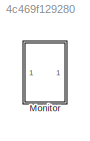
MODEL slx_4c469f129280
KIND model
CONFIG InitFcn = Ts = 0.1;\nROBOT_DOF=23;
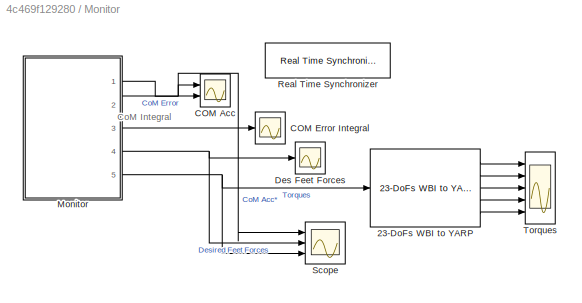
BLOCK [SubSystem] Monitor
  Ports = []
  RequestExecContextInheritance = off
BLOCK [Reference] Monitor/23-DoFs WBI to YARP  REF=WBCLibrary/Utilities/23-DoFs WBI to YARP
  Ports = [1, 5]
  SourceBlock = WBCLibrary/Utilities/23-DoFs WBI to YARP
BLOCK [Scope] Monitor/COM Acc
  DataFormat = StructureWithTime
  Floating = off
  LimitDataPoints = off
  NumInputPorts = 2
  Ports = [2]
  SampleTime = 0
  ShowLegends = on
  YMax = 0.2~0.04
  YMin = -0.4~-0.02
BLOCK [Scope] Monitor/COM Error Integral
  DataFormat = StructureWithTime
  Floating = off
  NumInputPorts = 1
  Ports = [1]
  SampleTime = 0
  SaveName = ScopeData4
  ShowLegends = off
  YMax = 0.1
  YMin = -0.7
BLOCK [Scope] Monitor/Des Feet Forces
  DataFormat = StructureWithTime
  Floating = off
  NumInputPorts = 1
  Ports = [1]
  SampleTime = 0
  SaveName = ScopeData2
  ShowLegends = off
  TimeRange = 10
  YMax = 120
  YMin = -10
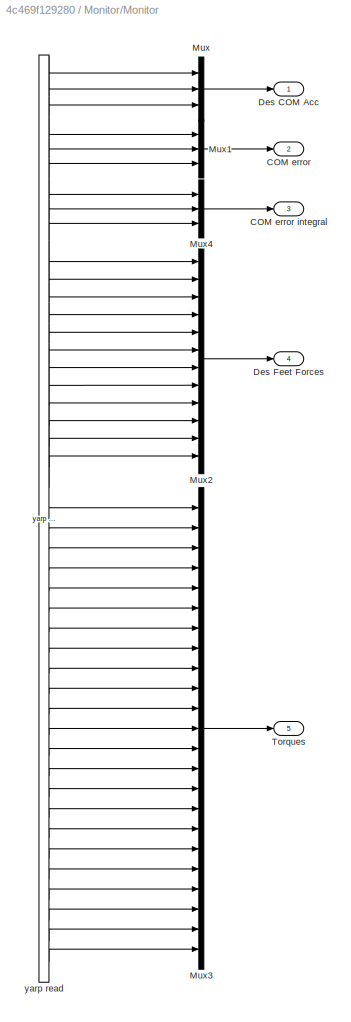
BLOCK [SubSystem] Monitor/Monitor
  Ports = [0, 5]
  RequestExecContextInheritance = off
BLOCK [Outport] Monitor/Monitor/COM error
  IconDisplay = Port number
  Port = 2
BLOCK [Outport] Monitor/Monitor/COM error integral
  IconDisplay = Port number
  Port = 3
BLOCK [Outport] Monitor/Monitor/Des COM Acc
  IconDisplay = Port number
BLOCK [Outport] Monitor/Monitor/Des Feet Forces
  IconDisplay = Port number
  Port = 4
BLOCK [Mux] Monitor/Monitor/Mux
  DisplayOption = bar
  Inputs = 3
  Ports = [3, 1]
BLOCK [Mux] Monitor/Monitor/Mux1
  DisplayOption = bar
  Inputs = 3
  Ports = [3, 1]
BLOCK [Mux] Monitor/Monitor/Mux2
  DisplayOption = bar
  Inputs = 12
  Ports = [12, 1]
BLOCK [Mux] Monitor/Monitor/Mux3
  DisplayOption = bar
  Inputs = 23
  Ports = [23, 1]
BLOCK [Mux] Monitor/Monitor/Mux4
  DisplayOption = bar
  Inputs = 3
  Ports = [3, 1]
BLOCK [Outport] Monitor/Monitor/Torques
  IconDisplay = Port number
  Port = 5
BLOCK [Reference] Monitor/Monitor/yarp read  REF=WBCLibrary/Utilities/yarp read
  Ports = [0, 44]
  SourceBlock = WBCLibrary/Utilities/yarp read
  SourceType = yarp read
  autoconnect = on
  blocking = off
  from = ['/' moduleName '/monitor:o']
  num = 44
  timestamp = off
  to = '...'
BLOCK [Reference] Monitor/Real Time Synchronizer  REF=WBCLibrary/Utilities/Real Time Synchronizer
  Ports = []
  Priority = -10
  SourceBlock = WBCLibrary/Utilities/Real Time Synchronizer
  threadPeriod = Ts
BLOCK [Scope] Monitor/Scope
  Floating = off
  LimitDataPoints = off
  NumInputPorts = 3
  Ports = [3]
  SaveName = ScopeData1
  ShowLegends = on
  YMax = 0.3~160~10
  YMin = -0.4~-20~-20
BLOCK [Scope] Monitor/Torques
  DataFormat = StructureWithTime
  Floating = off
  LimitDataPoints = off
  NumInputPorts = 5
  Ports = [5]
  SampleTime = 0
  SaveName = ScopeData3
  ShowLegends = off
  YMax = 1~5~5~5~5
  YMin = -1~-5~-5~-5~-5
ANNOTATION Monitor: CoM Integral
LINE Monitor/23-DoFs WBI to YARP:1 -> Monitor/Torques:1
LINE Monitor/23-DoFs WBI to YARP:2 -> Monitor/Torques:2
LINE Monitor/23-DoFs WBI to YARP:3 -> Monitor/Torques:3
LINE Monitor/23-DoFs WBI to YARP:4 -> Monitor/Torques:4
LINE Monitor/23-DoFs WBI to YARP:5 -> Monitor/Torques:5
LINE Monitor/Monitor/Mux1:1 -> Monitor/Monitor/COM error:1
LINE Monitor/Monitor/Mux2:1 -> Monitor/Monitor/Des Feet Forces:1
LINE Monitor/Monitor/Mux3:1 -> Monitor/Monitor/Torques:1
LINE Monitor/Monitor/Mux4:1 -> Monitor/Monitor/COM error integral:1
LINE Monitor/Monitor/Mux:1 -> Monitor/Monitor/Des COM Acc:1
LINE Monitor/Monitor/yarp read:1 -> Monitor/Monitor/Mux:1
LINE Monitor/Monitor/yarp read:10 -> Monitor/Monitor/Mux2:1
LINE Monitor/Monitor/yarp read:11 -> Monitor/Monitor/Mux2:2
LINE Monitor/Monitor/yarp read:12 -> Monitor/Monitor/Mux2:3
LINE Monitor/Monitor/yarp read:13 -> Monitor/Monitor/Mux2:4
LINE Monitor/Monitor/yarp read:14 -> Monitor/Monitor/Mux2:5
LINE Monitor/Monitor/yarp read:15 -> Monitor/Monitor/Mux2:6
LINE Monitor/Monitor/yarp read:16 -> Monitor/Monitor/Mux2:7
LINE Monitor/Monitor/yarp read:17 -> Monitor/Monitor/Mux2:8
LINE Monitor/Monitor/yarp read:18 -> Monitor/Monitor/Mux2:9
LINE Monitor/Monitor/yarp read:19 -> Monitor/Monitor/Mux2:10
LINE Monitor/Monitor/yarp read:2 -> Monitor/Monitor/Mux:2
LINE Monitor/Monitor/yarp read:20 -> Monitor/Monitor/Mux2:11
LINE Monitor/Monitor/yarp read:21 -> Monitor/Monitor/Mux2:12
LINE Monitor/Monitor/yarp read:22 -> Monitor/Monitor/Mux3:1
LINE Monitor/Monitor/yarp read:23 -> Monitor/Monitor/Mux3:2
LINE Monitor/Monitor/yarp read:24 -> Monitor/Monitor/Mux3:3
LINE Monitor/Monitor/yarp read:25 -> Monitor/Monitor/Mux3:4
LINE Monitor/Monitor/yarp read:26 -> Monitor/Monitor/Mux3:5
LINE Monitor/Monitor/yarp read:27 -> Monitor/Monitor/Mux3:6
LINE Monitor/Monitor/yarp read:28 -> Monitor/Monitor/Mux3:7
LINE Monitor/Monitor/yarp read:29 -> Monitor/Monitor/Mux3:8
LINE Monitor/Monitor/yarp read:3 -> Monitor/Monitor/Mux:3
LINE Monitor/Monitor/yarp read:30 -> Monitor/Monitor/Mux3:9
LINE Monitor/Monitor/yarp read:31 -> Monitor/Monitor/Mux3:10
LINE Monitor/Monitor/yarp read:32 -> Monitor/Monitor/Mux3:11
LINE Monitor/Monitor/yarp read:33 -> Monitor/Monitor/Mux3:12
LINE Monitor/Monitor/yarp read:34 -> Monitor/Monitor/Mux3:13
LINE Monitor/Monitor/yarp read:35 -> Monitor/Monitor/Mux3:14
LINE Monitor/Monitor/yarp read:36 -> Monitor/Monitor/Mux3:15
LINE Monitor/Monitor/yarp read:37 -> Monitor/Monitor/Mux3:16
LINE Monitor/Monitor/yarp read:38 -> Monitor/Monitor/Mux3:17
LINE Monitor/Monitor/yarp read:39 -> Monitor/Monitor/Mux3:18
LINE Monitor/Monitor/yarp read:4 -> Monitor/Monitor/Mux1:1
LINE Monitor/Monitor/yarp read:40 -> Monitor/Monitor/Mux3:19
LINE Monitor/Monitor/yarp read:41 -> Monitor/Monitor/Mux3:20
LINE Monitor/Monitor/yarp read:42 -> Monitor/Monitor/Mux3:21
LINE Monitor/Monitor/yarp read:43 -> Monitor/Monitor/Mux3:22
LINE Monitor/Monitor/yarp read:44 -> Monitor/Monitor/Mux3:23
LINE Monitor/Monitor/yarp read:5 -> Monitor/Monitor/Mux1:2
LINE Monitor/Monitor/yarp read:6 -> Monitor/Monitor/Mux1:3
LINE Monitor/Monitor/yarp read:7 -> Monitor/Monitor/Mux4:1
LINE Monitor/Monitor/yarp read:8 -> Monitor/Monitor/Mux4:2
LINE Monitor/Monitor/yarp read:9 -> Monitor/Monitor/Mux4:3
NET Monitor/Monitor:1 -> Monitor/COM Acc:1, Monitor/Scope:1
LINE Monitor/Monitor:2 -> Monitor/COM Acc:2
LINE Monitor/Monitor:3 -> Monitor/COM Error Integral:1
NET Monitor/Monitor:4 -> Monitor/Des Feet Forces:1, Monitor/Scope:2
NET Monitor/Monitor:5 -> Monitor/23-DoFs WBI to YARP:1, Monitor/Scope:3
note: NET lines group one-source signal fan-out (src -> all destinations, sorted); 1:1 wires keep LINE
